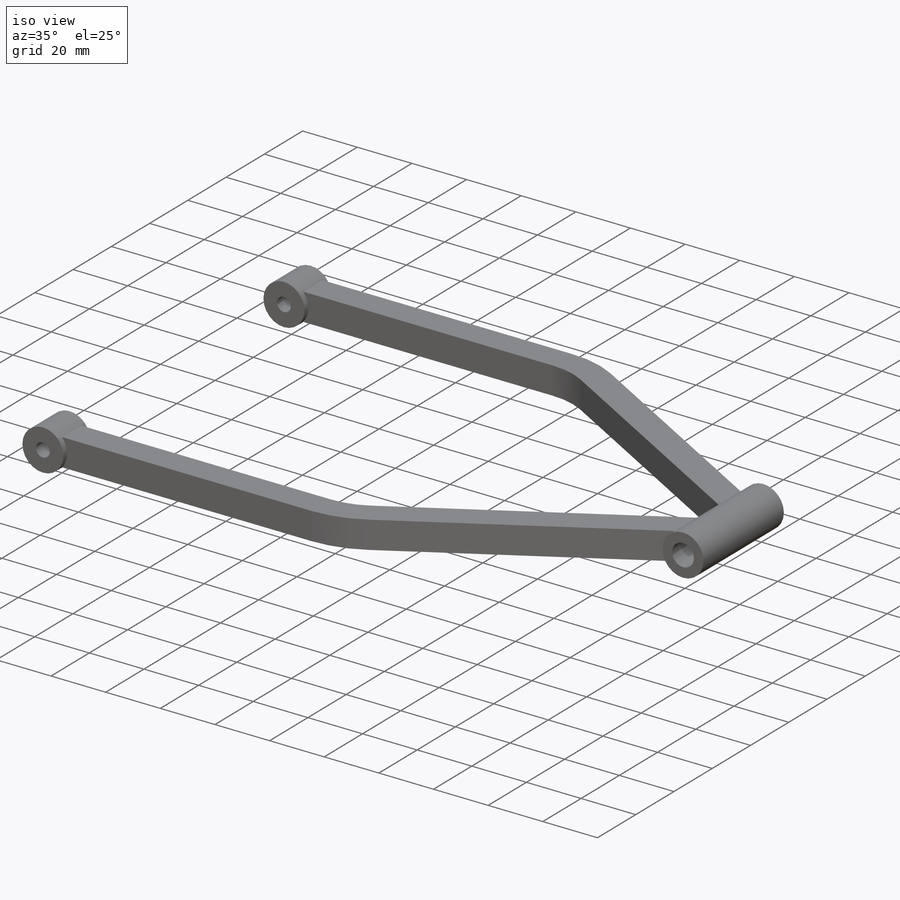
[diagram: iso view]
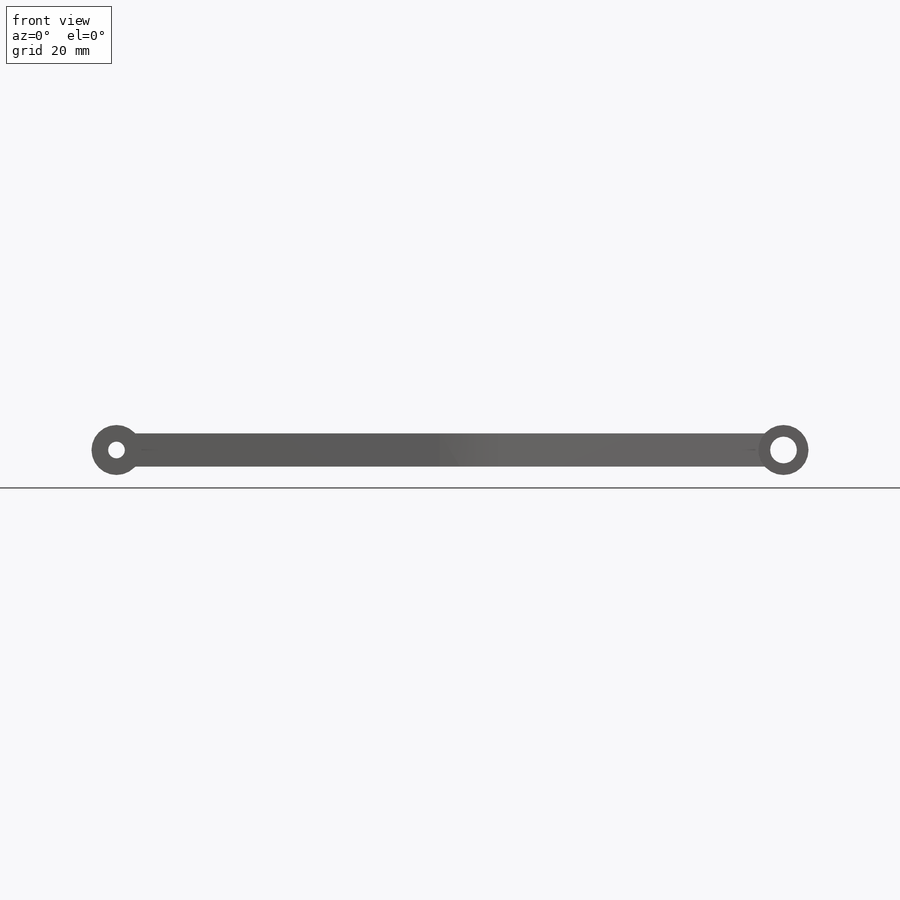
[diagram: front view]
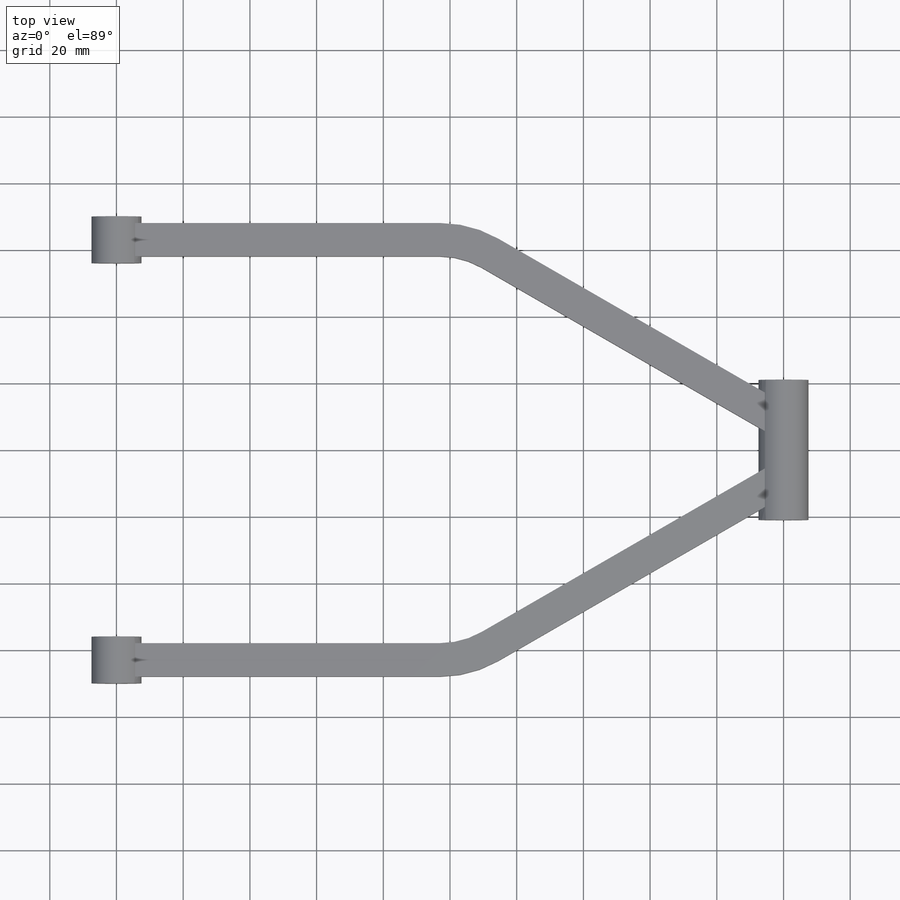
[diagram: top view]
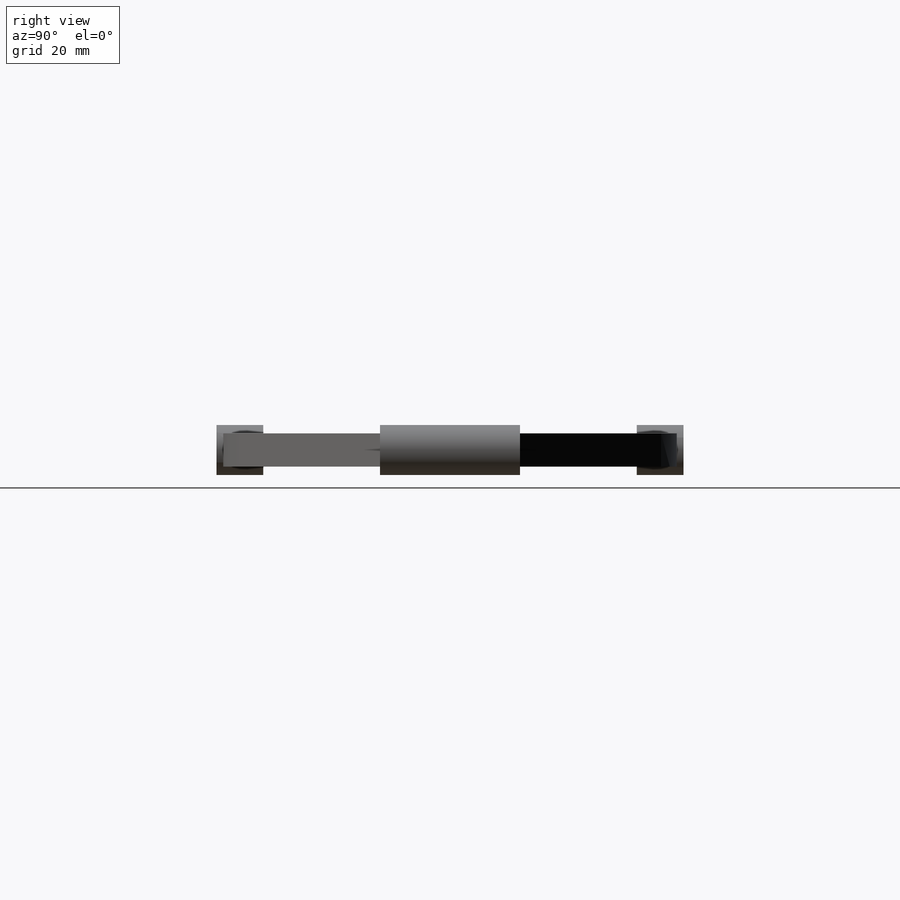
[diagram: right view]
SOLIDWORKS PART (.sldprt)
format: sldprt  version: not decoded by parser v0  size: 189,440 bytes
history: native  units: mm
features: sketch x6, plane x2, extrude x2, cut_extrude x2, material x1, sweep x1, mirror x1 (+11 scaffold rows collapsed)
feature tree (26):
  scaffold x11  (default folders/planes/origin — collapsed)
  material  "1060 Alloy"
  sketch  "Sketch1"  dims[c1.D5=30.0mm c1.D1=200.0mm c1.D2=105.0mm c1.D3=63.0mm c1.D4=80.0mm c2.D4=150.0deg]
  plane  "Plane1"
  sketch  "Sketch2"  dims[D1=15.0mm D2=5.0mm]
  extrude  "Boss-Extrude1"  Depth=14mm
  plane  "Plane2"
  sketch  "Sketch3"  dims[D1=10.0mm]
  sketch  "Sketch4"  dims[D1=8.0mm D2=15.0mm]
  extrude  "Boss-Extrude2"  Depth=42mm
  sweep  "Sweep1"
  mirror  "Mirror1"
  cut_extrude  "Cut-Extrude1"  [1 undecoded]
  sketch  "Sketch2<2>"  dims[D1=137.0mm D2=20.0mm]
  cut_extrude  "Cut-Extrude2"  [1 undecoded]
  sketch  "Sketch4<2>"  dims[D1=60.0mm]
decode coverage: 8 of 12 modeling features carry decoded parameters
note: 2 parameter values undecoded
note: suppression state not decoded; provenance and decode notes live in map.json
